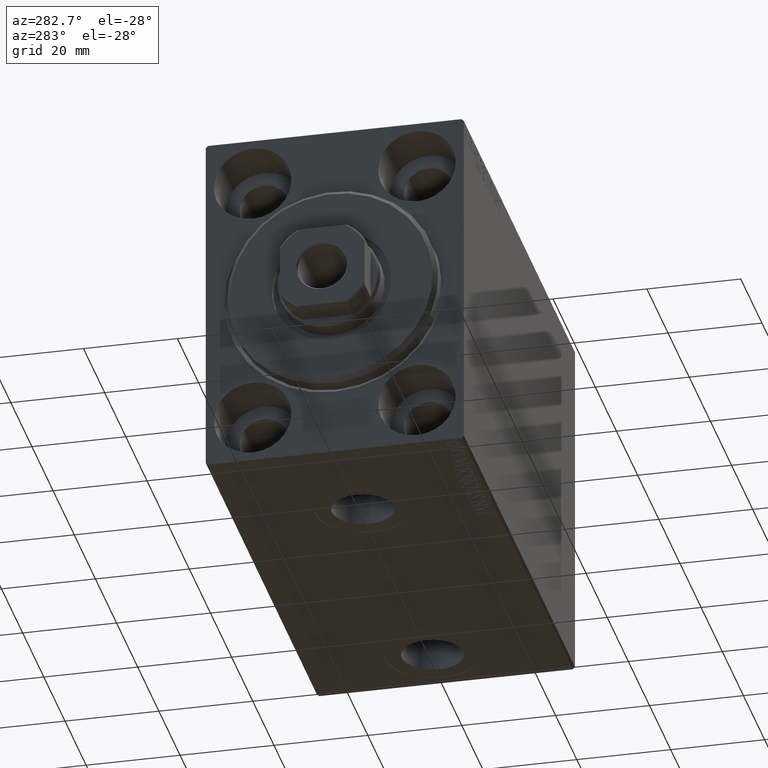
[diagram: clean part render]
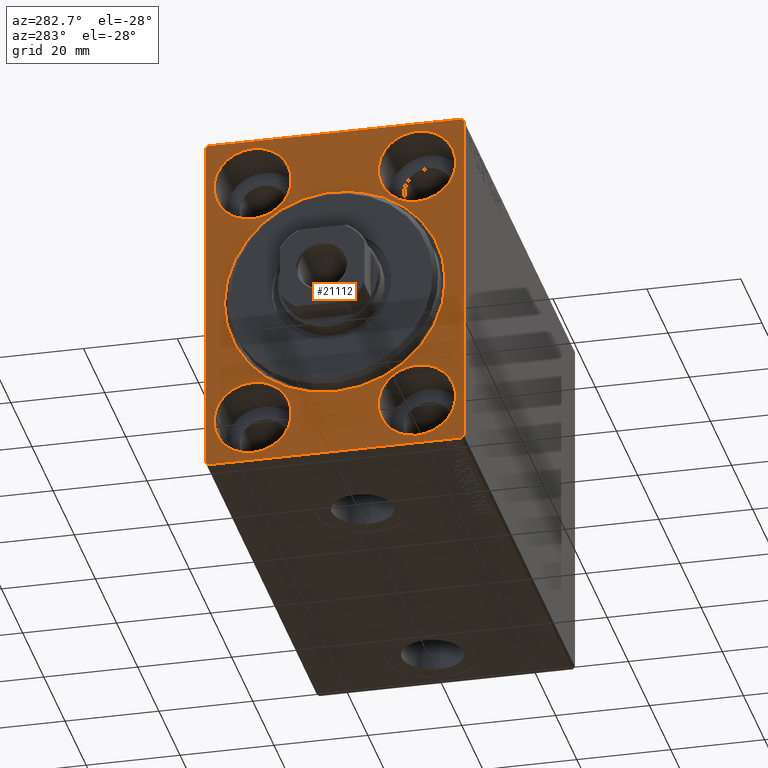
[diagram: same view with one face highlighted and labeled with its STEP entity id]
A machine part, auxiliary view. The second image highlights one B-rep face of the part: STEP entity #21112.
In plain terms, the highlighted planar face has unit normal (1, 0, 0).
Its self-contained STEP definition (entity closure, byte-faithful):
#1180 = CARTESIAN_POINT ( 'NONE',  ( 0.000000000000000000, -17.50000000000000355, -35.75000000000000711 ) ) ;
#1264 = ORIENTED_EDGE ( 'NONE', *, *, #11380, .F. ) ;
#1347 = CARTESIAN_POINT ( 'NONE',  ( 0.000000000000000000, -27.50000000000000355, -37.00000000000000000 ) ) ;
#1611 = CARTESIAN_POINT ( 'NONE',  ( 0.000000000000000000, 17.49999999999999645, -19.25000000000000355 ) ) ;
#1685 = DIRECTION ( 'NONE',  ( 0.000000000000000000, 0.000000000000000000, 1.000000000000000000 ) ) ;
#2372 = DIRECTION ( 'NONE',  ( -1.000000000000000000, 0.000000000000000000, 0.000000000000000000 ) ) ;
#3354 = CARTESIAN_POINT ( 'NONE',  ( 0.000000000000000000, -17.49999999999999645, 35.74999999999999289 ) ) ;
#3423 = ORIENTED_EDGE ( 'NONE', *, *, #38407, .T. ) ;
#3831 = ORIENTED_EDGE ( 'NONE', *, *, #42684, .F. ) ;
#4700 = DIRECTION ( 'NONE',  ( -0.000000000000000000, 0.7071067811865524577, -0.7071067811865426878 ) ) ;
#5101 = CARTESIAN_POINT ( 'NONE',  ( 0.000000000000000000, -27.00000000000001776, -37.50000000000000000 ) ) ;
#5205 = EDGE_CURVE ( 'NONE', #10013, #23974, #33131, .T. ) ;
#5281 = CARTESIAN_POINT ( 'NONE',  ( 0.000000000000000000, -27.50000000000000355, -37.50000000000000000 ) ) ;
#5333 = AXIS2_PLACEMENT_3D ( 'NONE', #38637, #14638, #21508 ) ;
#5749 = EDGE_CURVE ( 'NONE', #42491, #30822, #21726, .T. ) ;
#5975 = CARTESIAN_POINT ( 'NONE',  ( 0.000000000000000000, 0.000000000000000000, 0.000000000000000000 ) ) ;
#6160 = FACE_BOUND ( 'NONE', #42596, .T. ) ;
#6541 = EDGE_CURVE ( 'NONE', #43965, #8133, #31774, .T. ) ;
#7039 = CARTESIAN_POINT ( 'NONE',  ( 0.000000000000000000, 0.000000000000000000, 0.000000000000000000 ) ) ;
#7465 = CARTESIAN_POINT ( 'NONE',  ( 0.000000000000000000, 17.50000000000000355, 27.49999999999999645 ) ) ;
#7610 = VECTOR ( 'NONE', #37170, 1000.000000000000114 ) ;
#8133 = VERTEX_POINT ( 'NONE', #20775 ) ;
#8612 = AXIS2_PLACEMENT_3D ( 'NONE', #42945, #8661, #15756 ) ;
#8661 = DIRECTION ( 'NONE',  ( -1.000000000000000000, 0.000000000000000000, 0.000000000000000000 ) ) ;
#9304 = LINE ( 'NONE', #19135, #7610 ) ;
#9536 = VECTOR ( 'NONE', #4700, 1000.000000000000000 ) ;
#10013 = VERTEX_POINT ( 'NONE', #3354 ) ;
#10089 = CARTESIAN_POINT ( 'NONE',  ( 0.000000000000000000, -17.49999999999999645, 27.49999999999999645 ) ) ;
#10268 = FACE_BOUND ( 'NONE', #39358, .T. ) ;
#10491 = FACE_OUTER_BOUND ( 'NONE', #34545, .T. ) ;
#10524 = DIRECTION ( 'NONE',  ( 0.000000000000000000, 0.000000000000000000, -1.000000000000000000 ) ) ;
#10627 = VERTEX_POINT ( 'NONE', #25672 ) ;
#10823 = CIRCLE ( 'NONE', #12268, 8.249999999999992895 ) ;
#11203 = DIRECTION ( 'NONE',  ( 0.000000000000000000, 0.000000000000000000, -1.000000000000000000 ) ) ;
#11380 = EDGE_CURVE ( 'NONE', #15221, #30093, #32929, .T. ) ;
#11405 = ORIENTED_EDGE ( 'NONE', *, *, #5205, .F. ) ;
#11627 = EDGE_CURVE ( 'NONE', #31205, #19760, #32676, .T. ) ;
#12066 = VERTEX_POINT ( 'NONE', #28667 ) ;
#12268 = AXIS2_PLACEMENT_3D ( 'NONE', #14158, #41812, #37932 ) ;
#12307 = ORIENTED_EDGE ( 'NONE', *, *, #33895, .F. ) ;
#12585 = ORIENTED_EDGE ( 'NONE', *, *, #6541, .F. ) ;
#12614 = DIRECTION ( 'NONE',  ( 1.000000000000000000, 0.000000000000000000, 0.000000000000000000 ) ) ;
#12914 = EDGE_CURVE ( 'NONE', #23974, #10013, #16649, .T. ) ;
#13287 = CARTESIAN_POINT ( 'NONE',  ( 0.000000000000000000, 0.000000000000000000, 0.000000000000000000 ) ) ;
#14158 = CARTESIAN_POINT ( 'NONE',  ( 0.000000000000000000, 17.50000000000000355, 27.49999999999999645 ) ) ;
#14430 = CARTESIAN_POINT ( 'NONE',  ( 0.000000000000000000, -27.50000000000000355, 37.00000000000000000 ) ) ;
#14638 = DIRECTION ( 'NONE',  ( -1.000000000000000000, 0.000000000000000000, 0.000000000000000000 ) ) ;
#14732 = DIRECTION ( 'NONE',  ( 0.000000000000000000, 0.000000000000000000, 1.000000000000000000 ) ) ;
#15221 = VERTEX_POINT ( 'NONE', #5101 ) ;
#15756 = DIRECTION ( 'NONE',  ( 0.000000000000000000, 0.000000000000000000, 1.000000000000000000 ) ) ;
#15799 = EDGE_CURVE ( 'NONE', #10627, #41689, #36429, .T. ) ;
#16035 = CIRCLE ( 'NONE', #31244, 23.50000000000001776 ) ;
#16046 = ORIENTED_EDGE ( 'NONE', *, *, #5749, .F. ) ;
#16262 = EDGE_CURVE ( 'NONE', #12066, #20291, #16035, .T. ) ;
#16649 = CIRCLE ( 'NONE', #35610, 8.249999999999992895 ) ;
#17424 = EDGE_CURVE ( 'NONE', #27028, #44516, #32042, .T. ) ;
#17809 = ORIENTED_EDGE ( 'NONE', *, *, #17424, .F. ) ;
#18022 = PLANE ( 'NONE',  #25542 ) ;
#18084 = AXIS2_PLACEMENT_3D ( 'NONE', #36920, #37147, #26863 ) ;
#18549 = CARTESIAN_POINT ( 'NONE',  ( 0.000000000000000000, -27.50000000000000355, 37.00000000000000000 ) ) ;
#19135 = CARTESIAN_POINT ( 'NONE',  ( 0.000000000000000000, 27.50000000000000355, -36.99999999999998579 ) ) ;
#19237 = DIRECTION ( 'NONE',  ( 0.000000000000000000, 1.000000000000000000, 0.000000000000000000 ) ) ;
#19511 = CARTESIAN_POINT ( 'NONE',  ( 0.000000000000000000, 27.50000000000000355, -36.99999999999998579 ) ) ;
#19576 = CARTESIAN_POINT ( 'NONE',  ( 0.000000000000000000, 26.99999999999999645, 37.50000000000000711 ) ) ;
#19616 = VECTOR ( 'NONE', #42110, 1000.000000000000000 ) ;
#19760 = VERTEX_POINT ( 'NONE', #1611 ) ;
#19929 = DIRECTION ( 'NONE',  ( 0.000000000000000000, 0.000000000000000000, -1.000000000000000000 ) ) ;
#19939 = VECTOR ( 'NONE', #34071, 1000.000000000000000 ) ;
#20001 = AXIS2_PLACEMENT_3D ( 'NONE', #22959, #2372, #1685 ) ;
#20085 = CARTESIAN_POINT ( 'NONE',  ( 0.000000000000000000, 26.99999999999998934, -37.50000000000000000 ) ) ;
#20111 = FACE_BOUND ( 'NONE', #25134, .T. ) ;
#20150 = CARTESIAN_POINT ( 'NONE',  ( 0.000000000000000000, -27.00000000000001776, -37.50000000000000000 ) ) ;
#20291 = VERTEX_POINT ( 'NONE', #24160 ) ;
#20775 = CARTESIAN_POINT ( 'NONE',  ( 0.000000000000000000, -27.00000000000000355, 37.50000000000000000 ) ) ;
#21112 = ADVANCED_FACE ( 'NONE', ( #10268, #40686, #6160, #20111, #35149, #10491 ), #18022, .F. ) ;
#21508 = DIRECTION ( 'NONE',  ( 0.000000000000000000, 0.000000000000000000, 1.000000000000000000 ) ) ;
#21701 = EDGE_CURVE ( 'NONE', #43965, #44516, #35995, .T. ) ;
#21726 = LINE ( 'NONE', #35414, #36782 ) ;
#22959 = CARTESIAN_POINT ( 'NONE',  ( 0.000000000000000000, -17.49999999999999645, 27.49999999999999645 ) ) ;
#23914 = VECTOR ( 'NONE', #19237, 1000.000000000000000 ) ;
#23974 = VERTEX_POINT ( 'NONE', #28001 ) ;
#24045 = EDGE_CURVE ( 'NONE', #20291, #12066, #38027, .T. ) ;
#24160 = CARTESIAN_POINT ( 'NONE',  ( 0.000000000000000000, 2.877919977996282293E-15, -23.50000000000001776 ) ) ;
#24219 = ORIENTED_EDGE ( 'NONE', *, *, #44118, .F. ) ;
#25134 = EDGE_LOOP ( 'NONE', ( #28086, #3831 ) ) ;
#25542 = AXIS2_PLACEMENT_3D ( 'NONE', #7039, #28284, #35593 ) ;
#25630 = VERTEX_POINT ( 'NONE', #37177 ) ;
#25672 = CARTESIAN_POINT ( 'NONE',  ( 0.000000000000000000, 17.50000000000000355, 35.74999999999999289 ) ) ;
#26016 = ORIENTED_EDGE ( 'NONE', *, *, #12914, .F. ) ;
#26863 = DIRECTION ( 'NONE',  ( 0.000000000000000000, 0.000000000000000000, 1.000000000000000000 ) ) ;
#27028 = VERTEX_POINT ( 'NONE', #19511 ) ;
#27227 = DIRECTION ( 'NONE',  ( 0.000000000000000000, 0.000000000000000000, 1.000000000000000000 ) ) ;
#28001 = CARTESIAN_POINT ( 'NONE',  ( 0.000000000000000000, -17.49999999999999645, 19.25000000000000000 ) ) ;
#28086 = ORIENTED_EDGE ( 'NONE', *, *, #15799, .F. ) ;
#28284 = DIRECTION ( 'NONE',  ( 1.000000000000000000, 0.000000000000000000, 0.000000000000000000 ) ) ;
#28353 = DIRECTION ( 'NONE',  ( -0.000000000000000000, 0.7071067811865474617, 0.7071067811865474617 ) ) ;
#28642 = EDGE_LOOP ( 'NONE', ( #24219, #43389 ) ) ;
#28667 = CARTESIAN_POINT ( 'NONE',  ( 0.000000000000000000, 0.000000000000000000, 23.50000000000001776 ) ) ;
#28833 = ORIENTED_EDGE ( 'NONE', *, *, #16262, .T. ) ;
#28868 = VECTOR ( 'NONE', #42515, 1000.000000000000000 ) ;
#29448 = CIRCLE ( 'NONE', #5333, 8.250000000000000000 ) ;
#29973 = CARTESIAN_POINT ( 'NONE',  ( 0.000000000000000000, 27.49999999999999645, 37.00000000000001421 ) ) ;
#30093 = VERTEX_POINT ( 'NONE', #20085 ) ;
#30210 = CARTESIAN_POINT ( 'NONE',  ( 0.000000000000000000, 17.49999999999999645, -35.75000000000000711 ) ) ;
#30699 = CARTESIAN_POINT ( 'NONE',  ( 0.000000000000000000, 17.50000000000000355, 19.25000000000000000 ) ) ;
#30822 = VERTEX_POINT ( 'NONE', #1347 ) ;
#31205 = VERTEX_POINT ( 'NONE', #30210 ) ;
#31244 = AXIS2_PLACEMENT_3D ( 'NONE', #13287, #34295, #10524 ) ;
#31774 = LINE ( 'NONE', #42745, #28868 ) ;
#31792 = LINE ( 'NONE', #14430, #40522 ) ;
#32042 = LINE ( 'NONE', #35021, #19616 ) ;
#32676 = CIRCLE ( 'NONE', #8612, 8.250000000000000000 ) ;
#32929 = LINE ( 'NONE', #5281, #23914 ) ;
#33123 = EDGE_CURVE ( 'NONE', #15221, #30822, #40949, .T. ) ;
#33131 = CIRCLE ( 'NONE', #20001, 8.249999999999992895 ) ;
#33467 = CIRCLE ( 'NONE', #39319, 8.250000000000000000 ) ;
#33658 = VERTEX_POINT ( 'NONE', #1180 ) ;
#33895 = EDGE_CURVE ( 'NONE', #25630, #33658, #29448, .T. ) ;
#34071 = DIRECTION ( 'NONE',  ( -0.000000000000000000, -0.7071067811865378028, 0.7071067811865573427 ) ) ;
#34295 = DIRECTION ( 'NONE',  ( 1.000000000000000000, 0.000000000000000000, 0.000000000000000000 ) ) ;
#34545 = EDGE_LOOP ( 'NONE', ( #16046, #44160, #12585, #35221, #17809, #3423, #1264, #36505 ) ) ;
#35021 = CARTESIAN_POINT ( 'NONE',  ( 0.000000000000000000, 27.50000000000000355, -37.50000000000000000 ) ) ;
#35149 = FACE_BOUND ( 'NONE', #40157, .T. ) ;
#35221 = ORIENTED_EDGE ( 'NONE', *, *, #21701, .T. ) ;
#35414 = CARTESIAN_POINT ( 'NONE',  ( 0.000000000000000000, -27.50000000000000355, 37.50000000000000000 ) ) ;
#35593 = DIRECTION ( 'NONE',  ( 0.000000000000000000, 0.000000000000000000, -1.000000000000000000 ) ) ;
#35610 = AXIS2_PLACEMENT_3D ( 'NONE', #10089, #41622, #27227 ) ;
#35832 = AXIS2_PLACEMENT_3D ( 'NONE', #5975, #12614, #19929 ) ;
#35995 = LINE ( 'NONE', #39446, #9536 ) ;
#36429 = CIRCLE ( 'NONE', #37188, 8.249999999999992895 ) ;
#36505 = ORIENTED_EDGE ( 'NONE', *, *, #33123, .T. ) ;
#36782 = VECTOR ( 'NONE', #11203, 1000.000000000000000 ) ;
#36920 = CARTESIAN_POINT ( 'NONE',  ( 0.000000000000000000, -17.50000000000000355, -27.50000000000000355 ) ) ;
#37147 = DIRECTION ( 'NONE',  ( -1.000000000000000000, 0.000000000000000000, 0.000000000000000000 ) ) ;
#37170 = DIRECTION ( 'NONE',  ( 0.000000000000000000, -0.7071067811865474617, -0.7071067811865474617 ) ) ;
#37177 = CARTESIAN_POINT ( 'NONE',  ( 0.000000000000000000, -17.50000000000000355, -19.25000000000000355 ) ) ;
#37188 = AXIS2_PLACEMENT_3D ( 'NONE', #7465, #41990, #45193 ) ;
#37591 = ORIENTED_EDGE ( 'NONE', *, *, #41400, .F. ) ;
#37932 = DIRECTION ( 'NONE',  ( 0.000000000000000000, 0.000000000000000000, 1.000000000000000000 ) ) ;
#38027 = CIRCLE ( 'NONE', #35832, 23.50000000000001776 ) ;
#38407 = EDGE_CURVE ( 'NONE', #27028, #30093, #9304, .T. ) ;
#38637 = CARTESIAN_POINT ( 'NONE',  ( 0.000000000000000000, -17.50000000000000355, -27.50000000000000355 ) ) ;
#38735 = CARTESIAN_POINT ( 'NONE',  ( 0.000000000000000000, 17.49999999999999645, -27.50000000000000355 ) ) ;
#38961 = DIRECTION ( 'NONE',  ( -1.000000000000000000, 0.000000000000000000, 0.000000000000000000 ) ) ;
#39319 = AXIS2_PLACEMENT_3D ( 'NONE', #38735, #38961, #14732 ) ;
#39358 = EDGE_LOOP ( 'NONE', ( #28833, #43898 ) ) ;
#39446 = CARTESIAN_POINT ( 'NONE',  ( 0.000000000000000000, 26.99999999999999645, 37.50000000000000711 ) ) ;
#39781 = EDGE_CURVE ( 'NONE', #42491, #8133, #31792, .T. ) ;
#40157 = EDGE_LOOP ( 'NONE', ( #12307, #37591 ) ) ;
#40522 = VECTOR ( 'NONE', #28353, 1000.000000000000114 ) ;
#40686 = FACE_BOUND ( 'NONE', #28642, .T. ) ;
#40949 = LINE ( 'NONE', #20150, #19939 ) ;
#41400 = EDGE_CURVE ( 'NONE', #33658, #25630, #42137, .T. ) ;
#41622 = DIRECTION ( 'NONE',  ( -1.000000000000000000, 0.000000000000000000, 0.000000000000000000 ) ) ;
#41689 = VERTEX_POINT ( 'NONE', #30699 ) ;
#41812 = DIRECTION ( 'NONE',  ( -1.000000000000000000, 0.000000000000000000, 0.000000000000000000 ) ) ;
#41990 = DIRECTION ( 'NONE',  ( -1.000000000000000000, 0.000000000000000000, 0.000000000000000000 ) ) ;
#42110 = DIRECTION ( 'NONE',  ( 0.000000000000000000, -9.251858538542970348E-17, 1.000000000000000000 ) ) ;
#42137 = CIRCLE ( 'NONE', #18084, 8.250000000000000000 ) ;
#42491 = VERTEX_POINT ( 'NONE', #18549 ) ;
#42515 = DIRECTION ( 'NONE',  ( 0.000000000000000000, -1.000000000000000000, -1.261617073437677999E-16 ) ) ;
#42596 = EDGE_LOOP ( 'NONE', ( #11405, #26016 ) ) ;
#42684 = EDGE_CURVE ( 'NONE', #41689, #10627, #10823, .T. ) ;
#42745 = CARTESIAN_POINT ( 'NONE',  ( 0.000000000000000000, 27.49999999999999645, 37.50000000000000711 ) ) ;
#42945 = CARTESIAN_POINT ( 'NONE',  ( 0.000000000000000000, 17.49999999999999645, -27.50000000000000355 ) ) ;
#43389 = ORIENTED_EDGE ( 'NONE', *, *, #11627, .F. ) ;
#43898 = ORIENTED_EDGE ( 'NONE', *, *, #24045, .T. ) ;
#43965 = VERTEX_POINT ( 'NONE', #19576 ) ;
#44118 = EDGE_CURVE ( 'NONE', #19760, #31205, #33467, .T. ) ;
#44160 = ORIENTED_EDGE ( 'NONE', *, *, #39781, .T. ) ;
#44516 = VERTEX_POINT ( 'NONE', #29973 ) ;
#45193 = DIRECTION ( 'NONE',  ( 0.000000000000000000, 0.000000000000000000, 1.000000000000000000 ) ) ;